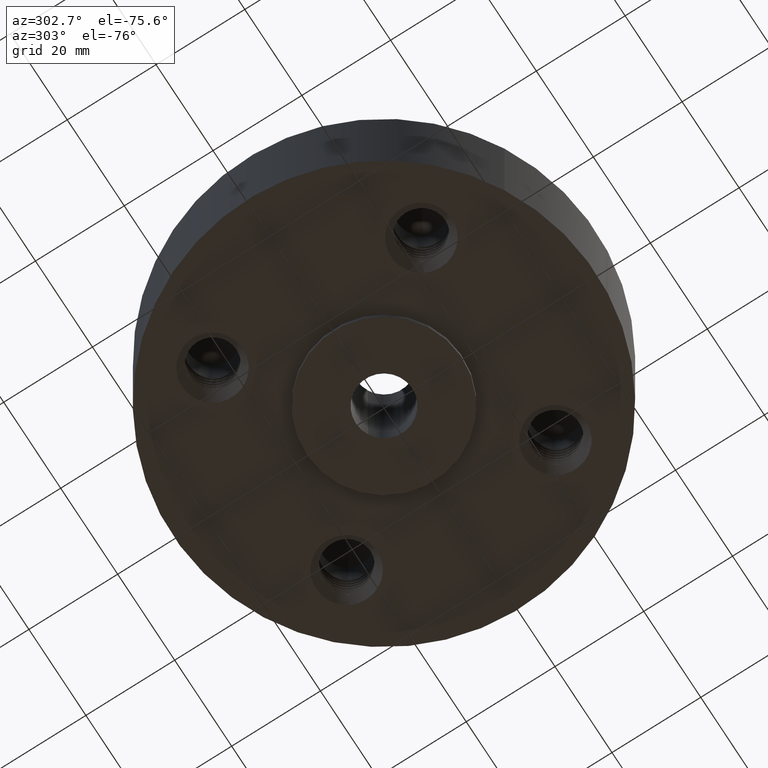
[diagram: clean part render]
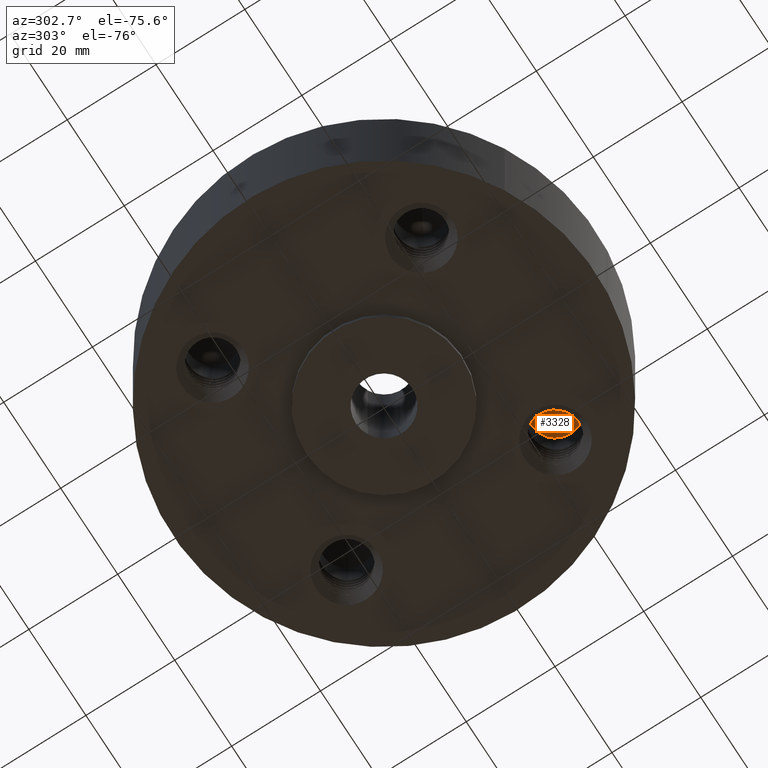
[diagram: same view with one face highlighted and labeled with its STEP entity id]
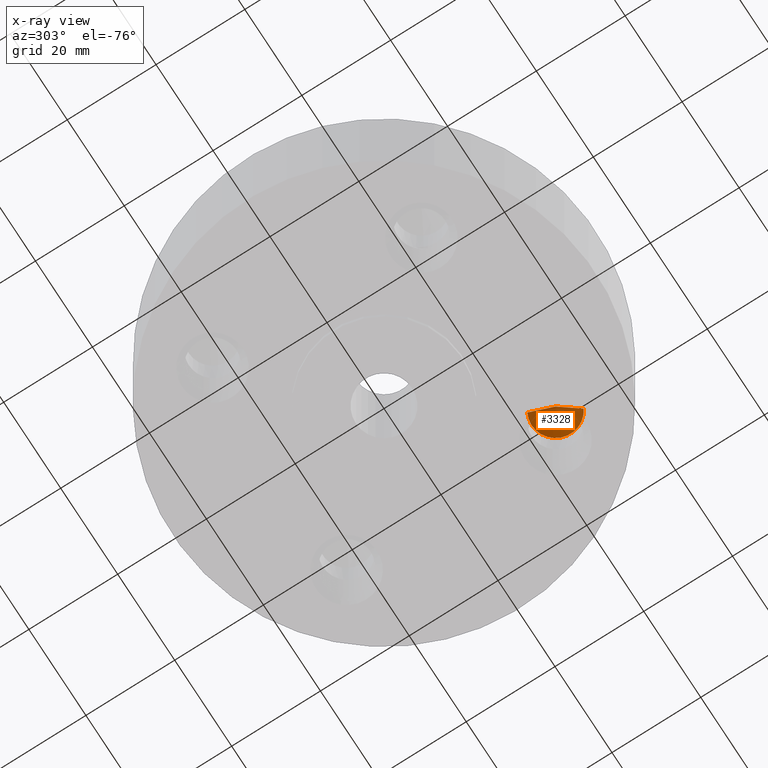
[diagram: x-ray of the same camera — body ghosted, the highlighted face saturated]
A machine part, auxiliary view. The second image highlights one B-rep face of the part: STEP entity #3328.
The next image is the same camera in x-ray: the body ghosted, the highlighted face saturated — about 26% of this face is hidden behind the body in this view.
In plain terms, the highlighted conical surface has half-angle 60 deg.
Its self-contained STEP definition (entity closure, byte-faithful):
#3289=AXIS2_PLACEMENT_3D('Cone Axis2P3D',#3286,#3287,#3288) ;
#3320=AXIS2_PLACEMENT_3D('Circle Axis2P3D',#3318,#3319,$) ;
#3286=CARTESIAN_POINT('Axis2P3D Location',(0.926309883358,-0.926309883358,1.0018209068)) ;
#3291=CARTESIAN_POINT('Line Origine',(0.976889277681,-1.01889484364,0.940910453403)) ;
#3295=CARTESIAN_POINT('Vertex',(0.926309883358,-0.926309883358,1.0018209068)) ;
#3297=CARTESIAN_POINT('Vertex',(1.027468672,-1.11147980392,0.880000000004)) ;
#3304=CARTESIAN_POINT('Vertex',(0.825151094712,-0.741139962798,0.880000000004)) ;
#3307=CARTESIAN_POINT('Line Origine',(0.875730489035,-0.833724923078,0.940910453403)) ;
#3318=CARTESIAN_POINT('Axis2P3D Location',(0.926309883358,-0.926309883358,0.880000000004)) ;
#3287=DIRECTION('Axis2P3D Direction',(-0.,-0.,-0.0393700787402)) ;
#3288=DIRECTION('Axis2P3D XDirection',(-0.0188750212049,0.0345504945626,0.)) ;
#3292=DIRECTION('Vector Direction',(0.0163462478604,-0.0299216060045,-0.0196850393701)) ;
#3308=DIRECTION('Vector Direction',(-0.0163462478604,0.0299216060045,-0.0196850393701)) ;
#3319=DIRECTION('Axis2P3D Direction',(0.,0.,-0.0393700787402)) ;
#3293=VECTOR('Line Direction',#3292,0.0393700787402) ;
#3309=VECTOR('Line Direction',#3308,0.0393700787402) ;
#3324=ORIENTED_EDGE('',*,*,#3311,.T.) ;
#3325=ORIENTED_EDGE('',*,*,#3322,.F.) ;
#3326=ORIENTED_EDGE('',*,*,#3299,.F.) ;
#3328=ADVANCED_FACE('PartBody',(#3327),#3290,.F.) ;
#3321=CIRCLE('generated circle',#3320,0.211000000001) ;
#3290=CONICAL_SURFACE('Cone',#3289,0.,1.0471975512) ;
#3299=EDGE_CURVE('',#3296,#3298,#3294,.T.) ;
#3311=EDGE_CURVE('',#3296,#3305,#3310,.T.) ;
#3322=EDGE_CURVE('',#3298,#3305,#3321,.F.) ;
#3323=EDGE_LOOP('',(#3324,#3325,#3326)) ;
#3327=FACE_OUTER_BOUND('',#3323,.T.) ;
#3294=LINE('Line',#3291,#3293) ;
#3310=LINE('Line',#3307,#3309) ;
#3296=VERTEX_POINT('',#3295) ;
#3298=VERTEX_POINT('',#3297) ;
#3305=VERTEX_POINT('',#3304) ;